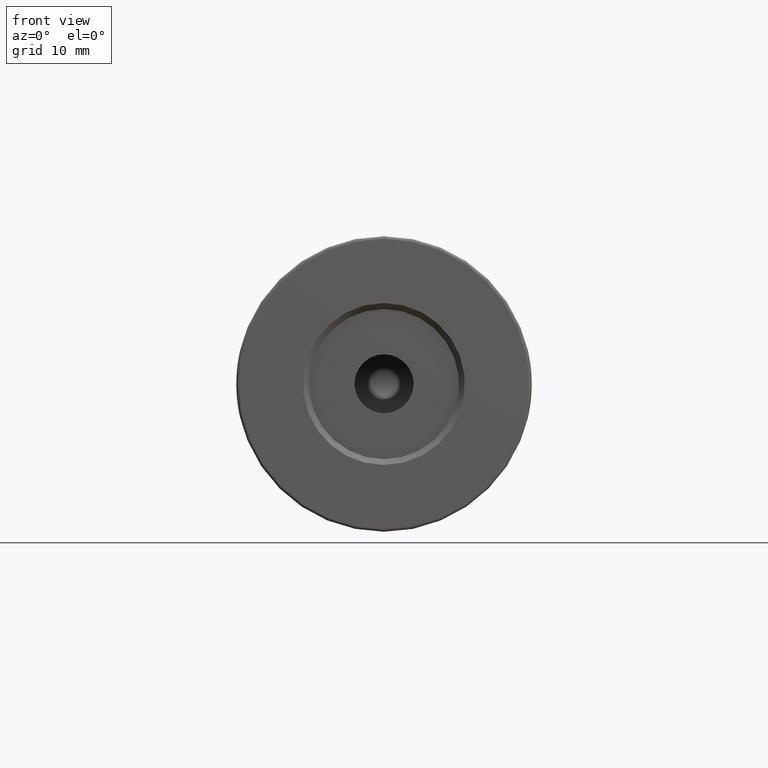
[diagram: clean part render]
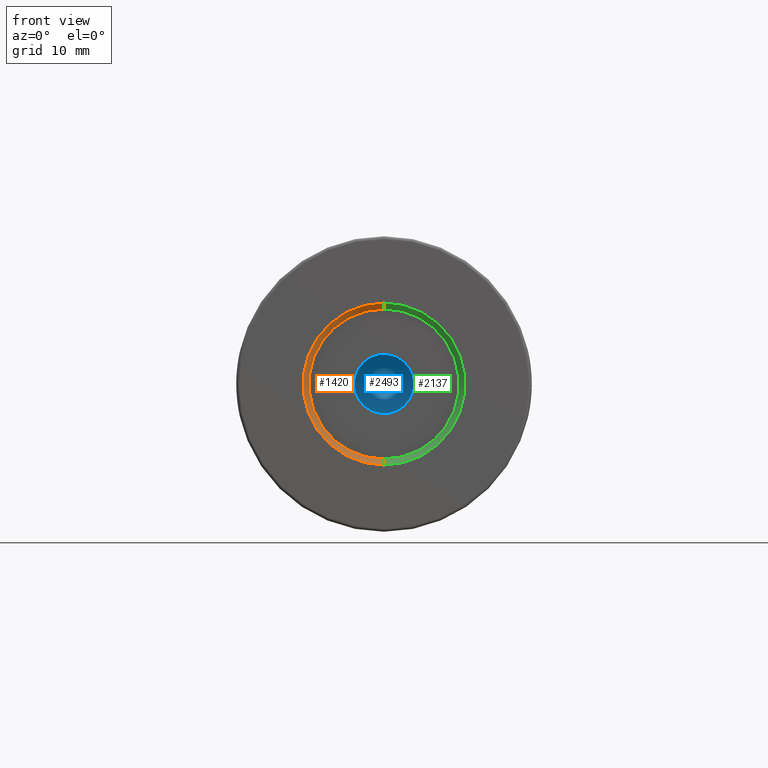
[diagram: same view with three faces highlighted in distinct colors, each labeled with its STEP entity id]
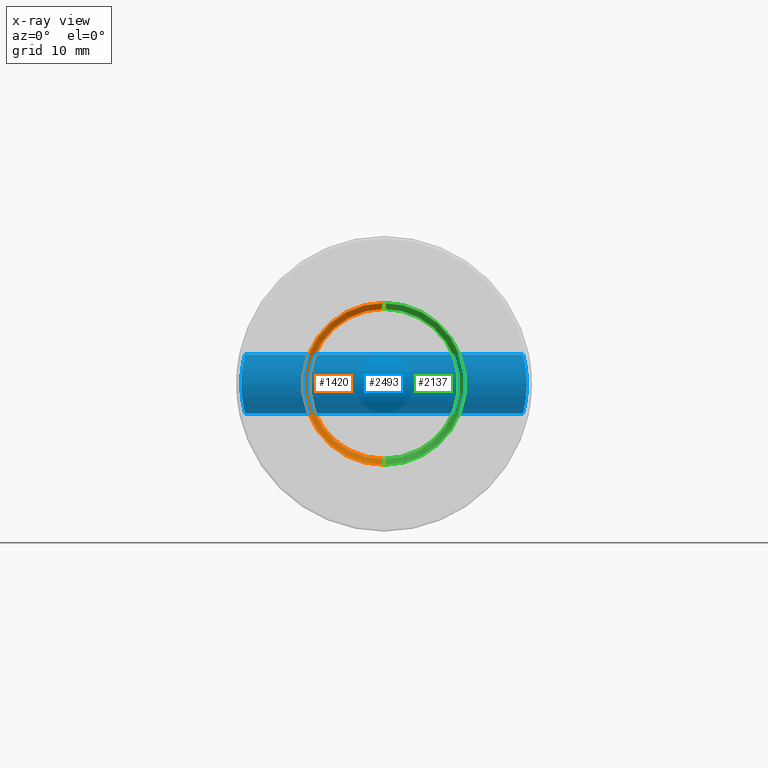
[diagram: x-ray of the same camera — body ghosted, the three highlighted faces saturated]
A machine part, front view with three faces highlighted in distinct colors.
The next image is the same camera in x-ray (body ghosted, the three faces saturated) — at least one of them is partly hidden behind the body in this view.
Their STEP definitions:

[orange] entity #1420 — the highlighted conical surface has half-angle 45 deg.
#44 = DIRECTION ( 'NONE',  ( 8.659560562354948882E-17, -0.7071067811865463515, 0.7071067811865487940 ) ) ;
#97 = CARTESIAN_POINT ( 'NONE',  ( -22.50520183104453409, -24.00174781523060830, 43.14999999999999858 ) ) ;
#187 = EDGE_CURVE ( 'NONE', #2911, #1615, #2045, .T. ) ;
#337 = CARTESIAN_POINT ( 'NONE',  ( -22.50520183104453409, -24.00174781523060830, 56.85000000000000142 ) ) ;
#548 = VECTOR ( 'NONE', #2729, 1000.000000000000000 ) ;
#577 = LINE ( 'NONE', #1105, #1150 ) ;
#603 = LINE ( 'NONE', #3250, #548 ) ;
#652 = DIRECTION ( 'NONE',  ( 0.0000000000000000000, 0.0000000000000000000, 1.000000000000000000 ) ) ;
#677 = ORIENTED_EDGE ( 'NONE', *, *, #187, .T. ) ;
#862 = CARTESIAN_POINT ( 'NONE',  ( -22.50520183104453409, -24.00174781523060830, 50.00000000000000000 ) ) ;
#880 = CONICAL_SURFACE ( 'NONE', #3063, 6.850000000000002309, 0.7853981633974500554 ) ;
#881 = DIRECTION ( 'NONE',  ( -0.0000000000000000000, -1.000000000000000000, -0.0000000000000000000 ) ) ;
#1035 = VERTEX_POINT ( 'NONE', #97 ) ;
#1076 = EDGE_CURVE ( 'NONE', #1615, #1596, #577, .T. ) ;
#1105 = CARTESIAN_POINT ( 'NONE',  ( -22.50520183104453409, -24.00174781523060830, 56.85000000000000142 ) ) ;
#1137 = FACE_OUTER_BOUND ( 'NONE', #1421, .T. ) ;
#1150 = VECTOR ( 'NONE', #44, 1000.000000000000000 ) ;
#1420 = ADVANCED_FACE ( 'NONE', ( #1137 ), #880, .F. ) ;
#1421 = EDGE_LOOP ( 'NONE', ( #677, #2361, #1994, #3101 ) ) ;
#1502 = CARTESIAN_POINT ( 'NONE',  ( -22.50520183104453409, -23.50174781523060830, 56.35000000000000142 ) ) ;
#1548 = CIRCLE ( 'NONE', #1714, 6.850000000000002309 ) ;
#1596 = VERTEX_POINT ( 'NONE', #337 ) ;
#1615 = VERTEX_POINT ( 'NONE', #1502 ) ;
#1714 = AXIS2_PLACEMENT_3D ( 'NONE', #2186, #2757, #3277 ) ;
#1771 = AXIS2_PLACEMENT_3D ( 'NONE', #2726, #2460, #652 ) ;
#1891 = EDGE_CURVE ( 'NONE', #2911, #1035, #603, .T. ) ;
#1945 = DIRECTION ( 'NONE',  ( 0.0000000000000000000, 0.0000000000000000000, -1.000000000000000000 ) ) ;
#1994 = ORIENTED_EDGE ( 'NONE', *, *, #2636, .F. ) ;
#2045 = CIRCLE ( 'NONE', #1771, 6.350000000000001421 ) ;
#2186 = CARTESIAN_POINT ( 'NONE',  ( -22.50520183104453409, -24.00174781523060830, 50.00000000000000000 ) ) ;
#2361 = ORIENTED_EDGE ( 'NONE', *, *, #1076, .T. ) ;
#2460 = DIRECTION ( 'NONE',  ( -0.0000000000000000000, 1.000000000000000000, -0.0000000000000000000 ) ) ;
#2636 = EDGE_CURVE ( 'NONE', #1035, #1596, #1548, .T. ) ;
#2726 = CARTESIAN_POINT ( 'NONE',  ( -22.50520183104453409, -23.50174781523060830, 50.00000000000000000 ) ) ;
#2729 = DIRECTION ( 'NONE',  ( 0.0000000000000000000, -0.7071067811865463515, -0.7071067811865487940 ) ) ;
#2737 = CARTESIAN_POINT ( 'NONE',  ( -22.50520183104453409, -23.50174781523060830, 43.64999999999999858 ) ) ;
#2757 = DIRECTION ( 'NONE',  ( 0.0000000000000000000, 1.000000000000000000, 0.0000000000000000000 ) ) ;
#2911 = VERTEX_POINT ( 'NONE', #2737 ) ;
#3063 = AXIS2_PLACEMENT_3D ( 'NONE', #862, #881, #1945 ) ;
#3101 = ORIENTED_EDGE ( 'NONE', *, *, #1891, .F. ) ;
#3250 = CARTESIAN_POINT ( 'NONE',  ( -22.50520183104453409, -24.00174781523060830, 43.14999999999999858 ) ) ;
#3277 = DIRECTION ( 'NONE',  ( 0.0000000000000000000, 0.0000000000000000000, 1.000000000000000000 ) ) ;

[blue] entity #2493 — the highlighted cylindrical surface (edge-blend (fillet) strip) has radius 2.5 mm, axis along (1, -0, -0).
#12 = CARTESIAN_POINT ( 'NONE',  ( -10.43156405839783218, -1.080594982313279884, 49.67285477186023712 ) ) ;
#15 = CARTESIAN_POINT ( 'NONE',  ( -34.54368112407457403, -0.9414460339279406842, 50.88104559077472544 ) ) ;
#17 = CARTESIAN_POINT ( 'NONE',  ( -34.40604090009802007, -0.2955402757887194976, 51.83903909737345828 ) ) ;
#29 = CARTESIAN_POINT ( 'NONE',  ( -10.65192854981628479, -0.007112948275392640129, 47.93238411280920275 ) ) ;
#32 = CARTESIAN_POINT ( 'NONE',  ( -34.51594362384925319, -0.8258666276665734829, 51.14180818670681106 ) ) ;
#35 = CARTESIAN_POINT ( 'NONE',  ( -34.42314861018448369, -0.3880299837949259811, 51.74909947995848114 ) ) ;
#38 = CARTESIAN_POINT ( 'NONE',  ( -34.45766587034616890, -0.5621190265008743081, 48.44791823222281124 ) ) ;
#47 = CARTESIAN_POINT ( 'NONE',  ( -10.65285238118425148, -0.0009475333826083760487, 47.92819957675042275 ) ) ;
#50 = B_SPLINE_CURVE_WITH_KNOTS ( 'NONE', 3,
 ( #1081, #3217, #825, #2297, #2330, #1888, #2597, #2615, #471, #3366, #3416, #1019, #2127, #729, #3103, #2069, #713, #3401, #2582, #190, #1247, #1004, #1795, #2053, #1533, #204, #3139, #744, #878, #1630, #372, #1958, #108, #2695, #1401, #2502, #1663, #1940, #1920, #300, #3014, #1645, #2710, #1698, #623, #1682, #2480, #2163, #1381, #3305, #898, #2748, #38, #915, #1973, #352, #858, #1363, #2444, #1099, #3234, #1439, #2463, #2768, #2426, #3289, #2196, #72, #2219, #315, #1169, #3267, #54, #1418, #1133, #2237, #90, #1114, #571, #639, #840 ),
 .UNSPECIFIED., .F., .F.,
 ( 4, 2, 2, 2, 2, 2, 1, 2, 2, 1, 2, 2, 2, 1, 2, 2, 2, 1, 1, 1, 2, 2, 2, 2, 2, 2, 2, 1, 2, 2, 2, 1, 2, 2, 2, 2, 2, 1, 2, 2, 2, 2, 2, 2, 4 ),
 ( 0.7500228881835949712, 0.7656464576721061510, 0.7734582424163616299, 0.7812700271606171087, 0.7890818119048725876, 0.7968935966491281775, 0.8047053813933836564, 0.8086112737655115623, 0.8125171661376395793, 0.8203289508818951692, 0.8242348432540229641, 0.8281407356261507591, 0.8359525203704070151, 0.8398584127425350321, 0.8418113589285993736, 0.8437643051146637152, 0.8515760898589228578, 0.8554819822310526511, 0.8574349284171172147, 0.8584114015101494966, 0.8588996380566661371, 0.8593878746031826665, 0.8671996593474440296, 0.8711055517195748221, 0.8750114440917056147, 0.8828232288359665336, 0.8867291212080968821, 0.8886820673941616677, 0.8896585404871945046, 0.8906350135802274526, 0.8984467983244939226, 0.9023526906966272687, 0.9043056368826939417, 0.9062585830687606148, 0.9140703678130295273, 0.9179762601851639836, 0.9218821525572985509, 0.9296939373015686847, 0.9335998296737042512, 0.9375057220458399287, 0.9453175067901099515, 0.9531292915343799743, 0.9609410762786499971, 0.9687528610229200199, 1.000000000000000000 ),
 .UNSPECIFIED. ) ;
#51 = CARTESIAN_POINT ( 'NONE',  ( -34.45235365778852099, -0.5361417108525038389, 51.58370875816879675 ) ) ;
#52 = CARTESIAN_POINT ( 'NONE',  ( -34.39865427623972494, -0.2538691972500468075, 51.87630079082518364 ) ) ;
#54 = CARTESIAN_POINT ( 'NONE',  ( -34.55052360424400604, -0.9691579968573799109, 49.19560660665842278 ) ) ;
#65 = CARTESIAN_POINT ( 'NONE',  ( -10.70635219089604462, 0.4197558955992587992, 47.69935029146150640 ) ) ;
#68 = CARTESIAN_POINT ( 'NONE',  ( -34.56987545375777415, -1.045809881140426834, 50.52745018297854784 ) ) ;
#72 = CARTESIAN_POINT ( 'NONE',  ( -34.52845201512811002, -0.8786810074049486996, 48.96753673022787723 ) ) ;
#79 = CARTESIAN_POINT ( 'NONE',  ( -10.74042506148157727, 0.8292857282991712431, 47.56526349988944702 ) ) ;
#86 = CARTESIAN_POINT ( 'NONE',  ( -34.45689946489315503, -0.5582448629678482543, 51.55638464945502619 ) ) ;
#90 = CARTESIAN_POINT ( 'NONE',  ( -34.56747093977831042, -1.036417866434832691, 49.43074854721366762 ) ) ;
#108 = CARTESIAN_POINT ( 'NONE',  ( -34.38215854310586650, -0.1572337749297392784, 48.04278849787316830 ) ) ;
#132 = CARTESIAN_POINT ( 'NONE',  ( -10.61375476845890553, -0.2424175758447397189, 48.11367224379719687 ) ) ;
#141 = EDGE_LOOP ( 'NONE', ( #3220, #901, #318, #1872, #2033 ) ) ;
#152 = CARTESIAN_POINT ( 'NONE',  ( -10.52509590031157138, -0.6911116932292776793, 48.62716597002481933 ) ) ;
#179 = VERTEX_POINT ( 'NONE', #855 ) ;
#190 = CARTESIAN_POINT ( 'NONE',  ( -34.32262663297802163, 0.2561880022930116407, 47.77601120054147543 ) ) ;
#204 = CARTESIAN_POINT ( 'NONE',  ( -34.35093376906428375, 0.04409749599018487898, 47.89848142053469360 ) ) ;
#228 = CARTESIAN_POINT ( 'NONE',  ( -10.64957744783410654, -0.02300115478601310118, 52.05702266511603682 ) ) ;
#243 = CARTESIAN_POINT ( 'NONE',  ( -10.48170455071354468, -0.8797127351541094153, 51.03018400399640342 ) ) ;
#247 = CARTESIAN_POINT ( 'NONE',  ( -34.36433900642754224, -0.04581549950857243675, 52.04091040487949726 ) ) ;
#257 = CARTESIAN_POINT ( 'NONE',  ( -10.59768553201901753, -0.3321902539828245904, 51.80448705950132648 ) ) ;
#276 = CARTESIAN_POINT ( 'NONE',  ( -10.43025254436777871, -1.085644778690181500, 49.71374546766558922 ) ) ;
#281 = CARTESIAN_POINT ( 'NONE',  ( -34.25265052839080937, 1.398252184769062545, 52.50000002275201183 ) ) ;
#293 = CARTESIAN_POINT ( 'NONE',  ( -10.63697505384424069, -0.1036455912846400151, 51.99867907403340439 ) ) ;
#298 = CARTESIAN_POINT ( 'NONE',  ( -34.36811292906084958, -0.07006115758311164121, 52.02348116211190643 ) ) ;
#300 = CARTESIAN_POINT ( 'NONE',  ( -34.40289296267378205, -0.2778242763902563084, 48.14495784682275570 ) ) ;
#309 = CARTESIAN_POINT ( 'NONE',  ( -10.57485337616742527, -0.4524102370145421381, 48.31908865571321599 ) ) ;
#312 = CARTESIAN_POINT ( 'NONE',  ( -34.49555993424461064, -0.7371358814722900332, 51.30020623644634270 ) ) ;
#313 = CARTESIAN_POINT ( 'NONE',  ( -34.25265217549466001, 1.236269165534699788, 52.50000000000000711 ) ) ;
#315 = CARTESIAN_POINT ( 'NONE',  ( -34.53415704703181888, -0.9023810259702501613, 49.02146608219466373 ) ) ;
#318 = ORIENTED_EDGE ( 'NONE', *, *, #887, .T. ) ;
#325 = CARTESIAN_POINT ( 'NONE',  ( -10.72619458734257059, 0.6309908818967997490, 47.62028682001273694 ) ) ;
#328 = CARTESIAN_POINT ( 'NONE',  ( -34.57597065877024534, -1.069532232657253168, 50.40818179685047795 ) ) ;
#348 = CARTESIAN_POINT ( 'NONE',  ( -34.47358128225562268, -0.6374202605790572074, 51.45179814202566604 ) ) ;
#352 = CARTESIAN_POINT ( 'NONE',  ( -34.47459360788752747, -0.6420274703579645914, 48.55504079404434492 ) ) ;
#359 = CARTESIAN_POINT ( 'NONE',  ( -35.00520183104453764, 1.398252184769388728, 52.50000000000000711 ) ) ;
#372 = CARTESIAN_POINT ( 'NONE',  ( -34.37321774599598712, -0.1023266512687587421, 48.00033112869615337 ) ) ;
#400 = CARTESIAN_POINT ( 'NONE',  ( -10.61189752606723680, -0.2530256318910765745, 48.12295669592722902 ) ) ;
#417 = CARTESIAN_POINT ( 'NONE',  ( -10.56681441809331368, -0.4930984355256202156, 48.36462535847881838 ) ) ;
#429 = CARTESIAN_POINT ( 'NONE',  ( -10.73519474087080994, 0.7493470907623660526, 52.41466407441143360 ) ) ;
#447 = CARTESIAN_POINT ( 'NONE',  ( -10.75344100359857968, 1.112614096120845275, 52.48396916619155661 ) ) ;
#471 = CARTESIAN_POINT ( 'NONE',  ( -34.26996838981452242, 0.8294527487229288454, 47.56522263060032429 ) ) ;
#496 = CARTESIAN_POINT ( 'NONE',  ( -10.45675696194166449, -0.9816754134451335378, 49.23350322589699601 ) ) ;
#512 = CARTESIAN_POINT ( 'NONE',  ( -10.62800475089785124, -0.1586852750508220555, 51.95605736551378584 ) ) ;
#529 = CARTESIAN_POINT ( 'NONE',  ( -10.62583528341401085, -0.1716875949901993936, 51.94559000068268517 ) ) ;
#530 = DIRECTION ( 'NONE',  ( 0.0000000000000000000, 0.0000000000000000000, -1.000000000000000000 ) ) ;
#533 = CARTESIAN_POINT ( 'NONE',  ( -34.39678456562497644, -0.2431949740330171528, 51.88565121880358078 ) ) ;
#544 = CARTESIAN_POINT ( 'NONE',  ( -10.62344330914441137, -0.1859351135215282225, 51.93400119752855915 ) ) ;
#547 = CARTESIAN_POINT ( 'NONE',  ( -34.54002586174097189, -0.9265255133409245891, 50.91969437421788314 ) ) ;
#550 = CARTESIAN_POINT ( 'NONE',  ( -34.32973418822695066, 0.1994190620568813965, 52.19391175067407573 ) ) ;
#564 = CARTESIAN_POINT ( 'NONE',  ( -10.46675418762623266, -0.9413161041780231386, 49.11861145009987695 ) ) ;
#567 = CARTESIAN_POINT ( 'NONE',  ( -34.58436371778456220, -1.101747815230615046, 50.00000000000000000 ) ) ;
#569 = CARTESIAN_POINT ( 'NONE',  ( -34.40082131573296209, -0.2661626669013910651, 51.86541833320497830 ) ) ;
#571 = CARTESIAN_POINT ( 'NONE',  ( -34.58016539617008789, -1.085858857418753987, 49.67297012222034880 ) ) ;
#580 = CARTESIAN_POINT ( 'NONE',  ( -10.68052348044559352, 0.1982792118607915044, 47.80671014584407175 ) ) ;
#584 = CARTESIAN_POINT ( 'NONE',  ( -34.34574828843261685, 0.08003128967803627147, 52.12460697448131697 ) ) ;
#596 = CARTESIAN_POINT ( 'NONE',  ( -10.68765339094563060, 0.2547109133766167766, 47.77645880612942619 ) ) ;
#611 = CARTESIAN_POINT ( 'NONE',  ( -35.00520183104453764, 1.398252184769388506, 47.50000000000000000 ) ) ;
#618 = CARTESIAN_POINT ( 'NONE',  ( -34.58332565315851070, -1.097829955506912869, 50.16206928806301590 ) ) ;
#623 = CARTESIAN_POINT ( 'NONE',  ( -34.43271107047542046, -0.4380337508703699423, 48.30302201580879995 ) ) ;
#639 = CARTESIAN_POINT ( 'NONE',  ( -34.58436371778455509, -1.101747815230613492, 49.83753810370575366 ) ) ;
#644 = CARTESIAN_POINT ( 'NONE',  ( -10.74267190343695333, 0.8671768546494194041, 47.55670384601891953 ) ) ;
#663 = CARTESIAN_POINT ( 'NONE',  ( -10.73524935634622679, 0.7501397676349280674, 47.58512630799975085 ) ) ;
#680 = CARTESIAN_POINT ( 'NONE',  ( -10.57773180386035428, -0.4376908258266889451, 48.30298648008233187 ) ) ;
#689 = CARTESIAN_POINT ( 'NONE',  ( -10.75209340271116432, 1.071636353525297070, 52.47891861097524924 ) ) ;
#696 = CARTESIAN_POINT ( 'NONE',  ( -10.54864018140504633, -0.5816680154576809869, 48.47333049443065534 ) ) ;
#713 = CARTESIAN_POINT ( 'NONE',  ( -34.30563352353281914, 0.4043161051188541300, 47.70574000951063454 ) ) ;
#721 = CARTESIAN_POINT ( 'NONE',  ( -10.69849887821426648, 0.3465721218114259372, 52.26868595215827895 ) ) ;
#729 = CARTESIAN_POINT ( 'NONE',  ( -34.29428882787969712, 0.5177238712617837635, 47.66010762342145313 ) ) ;
#744 = CARTESIAN_POINT ( 'NONE',  ( -34.35511391788480751, 0.01548280110741784808, 47.91720626424380924 ) ) ;
#751 = CARTESIAN_POINT ( 'NONE',  ( -10.44802382936704888, -1.016394345111540254, 49.35103264552653712 ) ) ;
#770 = CARTESIAN_POINT ( 'NONE',  ( -34.25692942769179439, 1.072705232016819776, 52.48426854193683511 ) ) ;
#783 = CARTESIAN_POINT ( 'NONE',  ( -10.47039545447926834, -0.9264528069906580177, 49.08012378233305384 ) ) ;
#787 = CARTESIAN_POINT ( 'NONE',  ( -34.39003097981993307, -0.2040613252291879065, 51.91903397196297476 ) ) ;
#798 = EDGE_CURVE ( 'NONE', #1632, #3068, #3052, .T. ) ;
#799 = CARTESIAN_POINT ( 'NONE',  ( -10.54703919517952393, -0.5893708078921872096, 51.51690487190018075 ) ) ;
#805 = CARTESIAN_POINT ( 'NONE',  ( -34.33622545325808773, 0.1498362925680415403, 52.16606716925647191 ) ) ;
#817 = CARTESIAN_POINT ( 'NONE',  ( -10.44688409141323149, -1.021078929299972016, 50.65151652726084563 ) ) ;
#821 = CARTESIAN_POINT ( 'NONE',  ( -34.56758620653832281, -1.036867936840156101, 50.56735310508386760 ) ) ;
#823 = CARTESIAN_POINT ( 'NONE',  ( -34.33170421932133820, 0.1841765980727979590, 52.18549987220747965 ) ) ;
#825 = CARTESIAN_POINT ( 'NONE',  ( -34.25372608118318141, 1.235573217283398861, 47.50394556699181692 ) ) ;
#834 = CARTESIAN_POINT ( 'NONE',  ( -10.54466226497588721, -0.6005430654723781236, 48.49825746431469753 ) ) ;
#838 = CARTESIAN_POINT ( 'NONE',  ( -34.30585923076505850, 0.4026942708919494796, 52.29330818213703225 ) ) ;
#840 = CARTESIAN_POINT ( 'NONE',  ( -34.58436371778456220, -1.101747815230615046, 50.00000000000000000 ) ) ;
#851 = CARTESIAN_POINT ( 'NONE',  ( -10.61231992382560385, -0.2506214636464055845, 48.12083918762263579 ) ) ;
#855 = CARTESIAN_POINT ( 'NONE',  ( -34.25265052839080937, 1.398252184769062545, 52.50000002275201183 ) ) ;
#858 = CARTESIAN_POINT ( 'NONE',  ( -34.47813198006177515, -0.6583300113946713994, 48.57853663993380167 ) ) ;
#869 = CARTESIAN_POINT ( 'NONE',  ( -10.55563654013713482, -0.5478977700875864443, 48.43075464459197121 ) ) ;
#871 = CARTESIAN_POINT ( 'NONE',  ( -34.55371675179834057, -0.9819582165585893918, 50.76562840243285990 ) ) ;
#878 = CARTESIAN_POINT ( 'NONE',  ( -34.36065912379799414, -0.02189760895549874159, 47.94221740969717160 ) ) ;
#887 = EDGE_CURVE ( 'NONE', #179, #1632, #1964, .T. ) ;
#898 = CARTESIAN_POINT ( 'NONE',  ( -34.45088966697465338, -0.5289798280020012733, 48.40758319727122938 ) ) ;
#901 = ORIENTED_EDGE ( 'NONE', *, *, #2039, .T. ) ;
#912 = EDGE_CURVE ( 'NONE', #2981, #3068, #1910, .T. ) ;
#915 = CARTESIAN_POINT ( 'NONE',  ( -34.46314919980924429, -0.5883474059361837316, 48.48175091579223306 ) ) ;
#937 = CARTESIAN_POINT ( 'NONE',  ( -10.51868758877161270, -0.7200257151353848251, 48.67196310145203597 ) ) ;
#954 = CARTESIAN_POINT ( 'NONE',  ( -10.70057055069110064, 0.3661159422534788765, 47.72291907336323646 ) ) ;
#964 = CARTESIAN_POINT ( 'NONE',  ( -10.72136315415296970, 0.5738019488466454820, 52.36077209941818467 ) ) ;
#980 = CARTESIAN_POINT ( 'NONE',  ( -10.73219813123106725, 0.7077767491621820284, 52.40308858972146311 ) ) ;
#1004 = CARTESIAN_POINT ( 'NONE',  ( -34.33157020775158230, 0.1848587072603982695, 47.81387465573678952 ) ) ;
#1010 = CARTESIAN_POINT ( 'NONE',  ( -10.53935697225389312, -0.6254966279011179298, 51.46794146036297946 ) ) ;
#1019 = CARTESIAN_POINT ( 'NONE',  ( -34.28408417304784450, 0.6325990095545964698, 47.61980232287655923 ) ) ;
#1027 = CARTESIAN_POINT ( 'NONE',  ( -10.48775368434227140, -0.8544294256867224213, 51.08551524650387421 ) ) ;
#1043 = CARTESIAN_POINT ( 'NONE',  ( -10.43661014202156601, -1.061059718658859952, 49.54899595839199833 ) ) ;
#1045 = DIRECTION ( 'NONE',  ( 1.000000000000000000, -0.0000000000000000000, -0.0000000000000000000 ) ) ;
#1059 = CARTESIAN_POINT ( 'NONE',  ( -10.58346237394712830, -0.4082778326659912138, 51.72892613119137195 ) ) ;
#1073 = CARTESIAN_POINT ( 'NONE',  ( -10.50780244122529261, -0.7681796818519227577, 51.24778492122360518 ) ) ;
#1079 = CARTESIAN_POINT ( 'NONE',  ( -34.38153388469637406, -0.1538147825593514650, 51.96040254886053589 ) ) ;
#1081 = CARTESIAN_POINT ( 'NONE',  ( -34.25265054498071038, 1.398252184769378959, 47.49999999999539568 ) ) ;
#1092 = CARTESIAN_POINT ( 'NONE',  ( -10.71235439384131460, 0.4781380950029291421, 47.67509863884829002 ) ) ;
#1095 = CARTESIAN_POINT ( 'NONE',  ( -34.50268437594403537, -0.7686213966978545642, 51.24753063485617588 ) ) ;
#1097 = CARTESIAN_POINT ( 'NONE',  ( -34.43550956290241771, -0.4522026045018584517, 51.68113994056925264 ) ) ;
#1099 = CARTESIAN_POINT ( 'NONE',  ( -34.48795404594740432, -0.7031998793194652597, 48.64510045653472758 ) ) ;
#1108 = CARTESIAN_POINT ( 'NONE',  ( -10.65951608119880767, 0.04397262649379376359, 47.89814453425164231 ) ) ;
#1111 = CARTESIAN_POINT ( 'NONE',  ( -34.48401816584316038, -0.6852538559192985490, 51.38169719037615124 ) ) ;
#1114 = CARTESIAN_POINT ( 'NONE',  ( -34.56966959213393409, -1.045008463542665744, 49.46876354832346578 ) ) ;
#1127 = CARTESIAN_POINT ( 'NONE',  ( -10.56225021271682962, -0.5156065727793202047, 48.39127750157916097 ) ) ;
#1133 = CARTESIAN_POINT ( 'NONE',  ( -34.55963833727091838, -1.005550600668984051, 49.31192079842450937 ) ) ;
#1147 = CARTESIAN_POINT ( 'NONE',  ( -34.45330299445130606, -0.5407750536102822192, 51.57803819709879178 ) ) ;
#1169 = CARTESIAN_POINT ( 'NONE',  ( -34.54002772576888702, -0.9265728093887797279, 49.07969790766723150 ) ) ;
#1194 = CARTESIAN_POINT ( 'NONE',  ( -10.62054598104047010, -0.2030448089213965357, 48.08011745744298082 ) ) ;
#1240 = FACE_OUTER_BOUND ( 'NONE', #141, .T. ) ;
#1247 = CARTESIAN_POINT ( 'NONE',  ( -34.32517718085318137, 0.2355261595269950714, 47.78675913460672575 ) ) ;
#1257 = CARTESIAN_POINT ( 'NONE',  ( -10.65514354455483392, 0.01449203186835839631, 52.08213575337757817 ) ) ;
#1274 = CARTESIAN_POINT ( 'NONE',  ( -10.68486198365343220, 0.2326005164725307994, 52.21170044161939927 ) ) ;
#1291 = CARTESIAN_POINT ( 'NONE',  ( -10.56685546660000163, -0.4927281287832489531, 51.63538786506001799 ) ) ;
#1306 = CARTESIAN_POINT ( 'NONE',  ( -10.43018898295431995, -1.086043810299412549, 50.32543852519826544 ) ) ;
#1322 = CARTESIAN_POINT ( 'NONE',  ( -10.57732511994436209, -0.4399142557606294801, 51.69492976375161675 ) ) ;
#1338 = CARTESIAN_POINT ( 'NONE',  ( -10.52885508855509755, -0.6739989469221575602, 51.39853227016897819 ) ) ;
#1341 = CARTESIAN_POINT ( 'NONE',  ( -34.52032622242513327, -0.8445100356069770164, 51.10473890576677292 ) ) ;
#1356 = CARTESIAN_POINT ( 'NONE',  ( -10.63454691679352848, -0.1190031699463948850, 48.01264145042093645 ) ) ;
#1359 = CARTESIAN_POINT ( 'NONE',  ( -34.56249268766884342, -1.016837435992602678, 50.64733428474297483 ) ) ;
#1361 = CARTESIAN_POINT ( 'NONE',  ( -34.44354952716784624, -0.4929003277358447455, 51.63560382797952997 ) ) ;
#1363 = CARTESIAN_POINT ( 'NONE',  ( -34.48044836707251903, -0.6689643209193825157, 48.59404682432251121 ) ) ;
#1373 = CARTESIAN_POINT ( 'NONE',  ( -10.47787395024711543, -0.8956762104589461870, 49.00529512604870774 ) ) ;
#1377 = CARTESIAN_POINT ( 'NONE',  ( -34.45474805832021303, -0.5478052659530334711, 51.56936024582271472 ) ) ;
#1379 = CARTESIAN_POINT ( 'NONE',  ( -34.35844637509190846, -0.006921562652920045314, 52.06774620976816692 ) ) ;
#1381 = CARTESIAN_POINT ( 'NONE',  ( -34.44837371983107488, -0.5166280658709982987, 48.39272163327927245 ) ) ;
#1393 = CARTESIAN_POINT ( 'NONE',  ( -10.51501407881777794, -0.7363793038043027206, 48.69855127287242169 ) ) ;
#1401 = CARTESIAN_POINT ( 'NONE',  ( -34.38577565378596290, -0.1788920693605692003, 48.06025158872775194 ) ) ;
#1414 = CARTESIAN_POINT ( 'NONE',  ( -34.46180608895014785, -0.5818729988153658050, 51.52640824506144668 ) ) ;
#1418 = CARTESIAN_POINT ( 'NONE',  ( -34.55357667331868043, -0.9813988309349318540, 49.23254846252063288 ) ) ;
#1439 = CARTESIAN_POINT ( 'NONE',  ( -34.50003614693451937, -0.7569234432429607917, 48.73286471885351290 ) ) ;
#1463 = CARTESIAN_POINT ( 'NONE',  ( -10.49703592662601004, -0.8148377673075698491, 48.83698465690920898 ) ) ;
#1481 = CARTESIAN_POINT ( 'NONE',  ( -10.60442211717972683, -0.2952135896773785406, 48.16065378347290959 ) ) ;
#1492 = CARTESIAN_POINT ( 'NONE',  ( -10.72622720231138871, 0.6314631381777605634, 52.37983731697224243 ) ) ;
#1508 = CARTESIAN_POINT ( 'NONE',  ( -10.75667521398369608, 1.235421006741817429, 52.49604762626250931 ) ) ;
#1524 = CARTESIAN_POINT ( 'NONE',  ( -10.65924026932488289, 0.04251003613308864532, 52.10049443554759563 ) ) ;
#1533 = CARTESIAN_POINT ( 'NONE',  ( -34.34705827746651607, 0.07100138809603820378, 47.88122892104171768 ) ) ;
#1540 = CARTESIAN_POINT ( 'NONE',  ( -10.74274117493633618, 0.8684932594161320907, 52.44355759701265640 ) ) ;
#1557 = CARTESIAN_POINT ( 'NONE',  ( -10.55933643631681562, -0.5298495552801348873, 51.59136355188988432 ) ) ;
#1572 = CARTESIAN_POINT ( 'NONE',  ( -10.52225190995814152, -0.7040929116324615711, 51.35352181794343096 ) ) ;
#1589 = CARTESIAN_POINT ( 'NONE',  ( -10.60718500976720691, -0.2796514536786489091, 51.85339265559527888 ) ) ;
#1590 = CARTESIAN_POINT ( 'NONE',  ( -35.00520183104453764, 1.398252184769388506, 50.00000000000000000 ) ) ;
#1605 = CARTESIAN_POINT ( 'NONE',  ( -10.64475702032041937, -0.05449199714333695377, 52.03499243848688849 ) ) ;
#1611 = CARTESIAN_POINT ( 'NONE',  ( -34.28602672658946915, 0.5950355727951023299, 52.37347955788561649 ) ) ;
#1623 = CARTESIAN_POINT ( 'NONE',  ( -10.47238800386702806, -0.9182809379813579032, 49.05975502746731109 ) ) ;
#1626 = CARTESIAN_POINT ( 'NONE',  ( -34.58436371778457641, -1.101747815230613936, 50.08077539355467422 ) ) ;
#1628 = CARTESIAN_POINT ( 'NONE',  ( -34.44811386680468956, -0.5154113351269652421, 51.60895465327023857 ) ) ;
#1630 = CARTESIAN_POINT ( 'NONE',  ( -34.36546234112146436, -0.05330031755438798674, 47.96415985767388435 ) ) ;
#1632 = VERTEX_POINT ( 'NONE', #3090 ) ;
#1639 = CARTESIAN_POINT ( 'NONE',  ( -10.61791199059537938, -0.2184314473192411066, 48.09305609076849208 ) ) ;
#1643 = CARTESIAN_POINT ( 'NONE',  ( -34.30408236987687332, 0.4194607100796639565, 52.30052462114022660 ) ) ;
#1645 = CARTESIAN_POINT ( 'NONE',  ( -34.41225743641047075, -0.3296779906252704229, 48.19311185126773722 ) ) ;
#1656 = CARTESIAN_POINT ( 'NONE',  ( -10.71610056787914900, 0.5169422706544986035, 47.66013366162555798 ) ) ;
#1663 = CARTESIAN_POINT ( 'NONE',  ( -34.38704001703374047, -0.1864058910529627633, 48.06638648100377509 ) ) ;
#1676 = CARTESIAN_POINT ( 'NONE',  ( -34.49189742569019046, -0.7208368889242648958, 51.32674070399374244 ) ) ;
#1682 = CARTESIAN_POINT ( 'NONE',  ( -34.44080632500155303, -0.4790193695790840867, 48.34885748940359917 ) ) ;
#1698 = CARTESIAN_POINT ( 'NONE',  ( -34.42649553506731053, -0.4059594385868249278, 48.26863308280292841 ) ) ;
#1704 = CARTESIAN_POINT ( 'NONE',  ( -10.75775311712864024, 1.398252184769388506, 47.50000000000000000 ) ) ;
#1718 = VECTOR ( 'NONE', #1948, 1000.000000000000000 ) ;
#1724 = CARTESIAN_POINT ( 'NONE',  ( -10.67175156277421877, 0.1317791047549085603, 47.84443531905044011 ) ) ;
#1740 = CARTESIAN_POINT ( 'NONE',  ( -10.67407581826325469, 0.1490699394471502459, 47.83437514433480686 ) ) ;
#1750 = CARTESIAN_POINT ( 'NONE',  ( -10.74040006283853366, 0.8288618078406300160, 52.43464063301803435 ) ) ;
#1757 = CARTESIAN_POINT ( 'NONE',  ( -10.55350416965509908, -0.5582445815112753174, 48.44361620070483809 ) ) ;
#1764 = B_SPLINE_CURVE_WITH_KNOTS ( 'NONE', 3,
 ( #567, #1626, #618, #2724, #328, #68, #821, #1359, #2938, #871, #2192, #15, #547, #2674, #3011, #3231, #1341, #32, #1884, #2957, #1095, #312, #1676, #2975, #2743, #1111, #2441, #348, #2707, #1414, #86, #1377, #1147, #51, #1628, #1361, #1097, #2406, #3167, #1902, #35, #2976, #1886, #17, #569, #2442, #52, #2693, #533, #2094, #3184, #787, #3232, #1079, #2143, #298, #247, #2924, #1379, #2424, #3215, #584, #2641, #805, #823, #550, #3444, #2161, #2940, #838, #1643, #1611, #2708, #770, #313, #281 ),
 .UNSPECIFIED., .F., .F.,
 ( 4, 2, 2, 2, 2, 1, 2, 2, 1, 2, 2, 2, 1, 2, 2, 2, 1, 1, 2, 2, 2, 2, 2, 2, 2, 2, 2, 1, 2, 2, 2, 1, 2, 2, 2, 2, 2, 1, 2, 2, 2, 4 ),
 ( 0.0000000000000000000, 0.01563223350077908719, 0.03126446700155817437, 0.03908058375194706224, 0.04689670050233595705, 0.05471281725272484492, 0.05862087562791928885, 0.06252893400311373973, 0.07034505075350261372, 0.07425310912869707847, 0.07816116750389152934, 0.08597728425428041721, 0.08988534262947486808, 0.09183937181707217678, 0.09379340100466948549, 0.1016095177550594003, 0.1055175761302537540, 0.1074716053178514236, 0.1084486199116497934, 0.1094256345054481355, 0.1172417512558457386, 0.1211498096310444222, 0.1231038388186437849, 0.1250578680062431336, 0.1328739847566404453, 0.1348280139442394887, 0.1358050285380390243, 0.1367820431318385599, 0.1387360723194386025, 0.1406901015070386451, 0.1485062182574379830, 0.1524142766326372356, 0.1543683058202368619, 0.1563223350078365159, 0.1641384517582357427, 0.1680465101334353006, 0.1719545685086348308, 0.1797706852590340576, 0.1836787436342336433, 0.1875868020094332289, 0.2188512690110298864, 0.2501157360126264884 ),
 .UNSPECIFIED. ) ;
#1768 = CARTESIAN_POINT ( 'NONE',  ( -10.68741613334516671, 0.2532371235474637494, 52.22247155065637969 ) ) ;
#1774 = EDGE_CURVE ( 'NONE', #2981, #1890, #50, .T. ) ;
#1775 = VECTOR ( 'NONE', #3002, 1000.000000000000000 ) ;
#1786 = CARTESIAN_POINT ( 'NONE',  ( -10.66309147314514938, 0.06921372924648400149, 52.11764764604480860 ) ) ;
#1795 = CARTESIAN_POINT ( 'NONE',  ( -34.33611078082176249, 0.1503272234968298648, 47.83335261601247623 ) ) ;
#1801 = CARTESIAN_POINT ( 'NONE',  ( -10.70449112277471571, 0.4016970245456060185, 52.29312540136264431 ) ) ;
#1818 = CARTESIAN_POINT ( 'NONE',  ( -10.59387149139203643, -0.3528523106078625404, 51.78446549813170208 ) ) ;
#1835 = CARTESIAN_POINT ( 'NONE',  ( -10.60419655763225677, -0.2963636030819495337, 51.83817352644067711 ) ) ;
#1850 = CARTESIAN_POINT ( 'NONE',  ( -10.62437748581633379, -0.1803884314581209736, 51.93853686259121361 ) ) ;
#1863 = CARTESIAN_POINT ( 'NONE',  ( -10.47600715848091646, -0.9033707158615280619, 50.97620108933410421 ) ) ;
#1872 = ORIENTED_EDGE ( 'NONE', *, *, #798, .T. ) ;
#1881 = CARTESIAN_POINT ( 'NONE',  ( -10.46147760232159030, -0.9627523267846281874, 49.17624564864932779 ) ) ;
#1884 = CARTESIAN_POINT ( 'NONE',  ( -34.51348870992626416, -0.8153565648114605713, 51.16202697219717521 ) ) ;
#1886 = CARTESIAN_POINT ( 'NONE',  ( -34.41198757834734323, -0.3286182131231212278, 51.80867430773898263 ) ) ;
#1888 = CARTESIAN_POINT ( 'NONE',  ( -34.26152439530169858, 0.9901480679883652991, 47.53318789125314936 ) ) ;
#1890 = VERTEX_POINT ( 'NONE', #2178 ) ;
#1898 = CARTESIAN_POINT ( 'NONE',  ( -10.60970155991924635, -0.2654886938224925719, 48.13398014721318674 ) ) ;
#1902 = CARTESIAN_POINT ( 'NONE',  ( -34.42642532567806057, -0.4052489239263492582, 51.73133957600904154 ) ) ;
#1910 = LINE ( 'NONE', #611, #1718 ) ;
#1913 = CARTESIAN_POINT ( 'NONE',  ( -10.64961320538747458, -0.02246788177583084953, 47.94290469188774040 ) ) ;
#1920 = CARTESIAN_POINT ( 'NONE',  ( -34.39483878216468327, -0.2322178001726478702, 48.10442029893889782 ) ) ;
#1931 = CARTESIAN_POINT ( 'NONE',  ( -10.69439968394435603, 0.3107931542054102048, 47.74825504812935861 ) ) ;
#1940 = CARTESIAN_POINT ( 'NONE',  ( -34.39051756307406293, -0.2070101099894401386, 48.08329390823769955 ) ) ;
#1948 = DIRECTION ( 'NONE',  ( 1.000000000000000000, -0.0000000000000000000, -0.0000000000000000000 ) ) ;
#1958 = CARTESIAN_POINT ( 'NONE',  ( -34.37723309315557429, -0.1273193401178095430, 48.01923149303783589 ) ) ;
#1964 = LINE ( 'NONE', #359, #1775 ) ;
#1973 = CARTESIAN_POINT ( 'NONE',  ( -34.47086386073894460, -0.6246421135782300738, 48.53088012348038660 ) ) ;
#1997 = CARTESIAN_POINT ( 'NONE',  ( -10.64607111686066609, -0.04577195245575912952, 47.95906072895294869 ) ) ;
#2007 = CARTESIAN_POINT ( 'NONE',  ( -10.74690030135981011, 0.9473856642076738943, 52.45933682718456481 ) ) ;
#2016 = CARTESIAN_POINT ( 'NONE',  ( -10.48373458052640572, -0.8713286182291762882, 48.95026334242839994 ) ) ;
#2027 = CARTESIAN_POINT ( 'NONE',  ( -10.74885913941823468, 0.9897023148319971098, 52.46673922108375621 ) ) ;
#2033 = ORIENTED_EDGE ( 'NONE', *, *, #912, .F. ) ;
#2039 = EDGE_CURVE ( 'NONE', #1890, #179, #1764, .T. ) ;
#2042 = CARTESIAN_POINT ( 'NONE',  ( -10.71009666006398575, 0.4561568447543235538, 52.31578128150257356 ) ) ;
#2053 = CARTESIAN_POINT ( 'NONE',  ( -34.34333947313380264, 0.09759829483749073165, 47.86488434564267180 ) ) ;
#2061 = CARTESIAN_POINT ( 'NONE',  ( -10.75775312123383642, 1.398252184769397388, 52.49999999860907707 ) ) ;
#2069 = CARTESIAN_POINT ( 'NONE',  ( -34.30005545320426563, 0.4586515400351668381, 47.68320586002708694 ) ) ;
#2075 = CARTESIAN_POINT ( 'NONE',  ( -10.45853397093820547, -0.9753457990627291130, 50.80247828431435408 ) ) ;
#2090 = CARTESIAN_POINT ( 'NONE',  ( -10.61972372439699441, -0.2079601786130998164, 51.91591326594908651 ) ) ;
#2094 = CARTESIAN_POINT ( 'NONE',  ( -34.39467459846171948, -0.2310918294637093473, 51.89616302052784391 ) ) ;
#2106 = CARTESIAN_POINT ( 'NONE',  ( -10.63294623930473826, -0.1287006704173314087, 51.97970505909967187 ) ) ;
#2127 = CARTESIAN_POINT ( 'NONE',  ( -34.28890165777470145, 0.5753963109525661590, 47.63868203708297955 ) ) ;
#2138 = CARTESIAN_POINT ( 'NONE',  ( -10.61534918415707374, -0.2334643232493486820, 51.89451868831789483 ) ) ;
#2143 = CARTESIAN_POINT ( 'NONE',  ( -34.37594117883563172, -0.1195296099443745874, 51.98696219456841305 ) ) ;
#2157 = CARTESIAN_POINT ( 'NONE',  ( -10.49456390203967260, -0.8254235332608448328, 48.85732724732409338 ) ) ;
#2161 = CARTESIAN_POINT ( 'NONE',  ( -34.31595423362308850, 0.3112339593152832484, 52.25194986128583707 ) ) ;
#2163 = CARTESIAN_POINT ( 'NONE',  ( -34.44673367138268816, -0.5085282893674971660, 48.38313120806850520 ) ) ;
#2170 = CARTESIAN_POINT ( 'NONE',  ( -34.25265054498071038, 1.398252184769378959, 47.49999999999539568 ) ) ;
#2172 = CARTESIAN_POINT ( 'NONE',  ( -10.50786879652201478, -0.7679670883882485644, 48.75133047366022510 ) ) ;
#2178 = CARTESIAN_POINT ( 'NONE',  ( -34.58436371778456220, -1.101747815230615046, 50.00000000000000000 ) ) ;
#2190 = CARTESIAN_POINT ( 'NONE',  ( -10.58393590299973930, -0.4054708077849687453, 48.26889160422751246 ) ) ;
#2192 = CARTESIAN_POINT ( 'NONE',  ( -34.54897798571956002, -0.9629645925202592327, 50.82316125440854648 ) ) ;
#2196 = CARTESIAN_POINT ( 'NONE',  ( -34.52237776065808106, -0.8532812732204866357, 48.91209882768606576 ) ) ;
#2219 = CARTESIAN_POINT ( 'NONE',  ( -34.53237663778128308, -0.8950104628124453399, 49.00433359288376778 ) ) ;
#2237 = CARTESIAN_POINT ( 'NONE',  ( -34.56241719056284722, -1.016540575814457892, 49.35158547351098690 ) ) ;
#2259 = CARTESIAN_POINT ( 'NONE',  ( -10.52659986134868575, -0.6842789163477207559, 48.61683424880554583 ) ) ;
#2279 = CARTESIAN_POINT ( 'NONE',  ( -10.59842354210101867, -0.3285848302962205980, 48.19128023219278134 ) ) ;
#2297 = CARTESIAN_POINT ( 'NONE',  ( -34.25695295456365130, 1.112906428108033641, 47.51599801853822669 ) ) ;
#2330 = CARTESIAN_POINT ( 'NONE',  ( -34.25829749249532341, 1.071978150705341193, 47.52103727242838005 ) ) ;
#2337 = CARTESIAN_POINT ( 'NONE',  ( -10.52981318183160653, -0.6696149487544613699, 51.40499581735981138 ) ) ;
#2353 = CARTESIAN_POINT ( 'NONE',  ( -10.53564298324172910, -0.6428015421543805674, 51.44386386525030730 ) ) ;
#2368 = CARTESIAN_POINT ( 'NONE',  ( -10.42710243056093233, -1.097735351428625661, 49.83632547966519866 ) ) ;
#2384 = CARTESIAN_POINT ( 'NONE',  ( -10.56031926644882191, -0.5250308565938920369, 51.59718396469224899 ) ) ;
#2401 = CARTESIAN_POINT ( 'NONE',  ( -10.49436252010446857, -0.8263483254497858699, 51.14147247850377198 ) ) ;
#2406 = CARTESIAN_POINT ( 'NONE',  ( -34.43263066567890718, -0.4374791448603631561, 51.69724255878689689 ) ) ;
#2418 = CARTESIAN_POINT ( 'NONE',  ( -10.64232181268308253, -0.06986180924169327344, 47.97637558954522063 ) ) ;
#2424 = CARTESIAN_POINT ( 'NONE',  ( -34.35749941449371647, -0.0006002473637294168532, 52.07203507604332060 ) ) ;
#2426 = CARTESIAN_POINT ( 'NONE',  ( -34.50873068779588237, -0.7948591729254497196, 48.79970146556434685 ) ) ;
#2438 = CARTESIAN_POINT ( 'NONE',  ( -10.49015723665451993, -0.8441725911507929059, 48.89457436116012445 ) ) ;
#2441 = CARTESIAN_POINT ( 'NONE',  ( -34.47841176954442943, -0.6597039480362481001, 51.41991877060629434 ) ) ;
#2442 = CARTESIAN_POINT ( 'NONE',  ( -34.39988808703225942, -0.2608806378079215893, 51.87011153446917433 ) ) ;
#2444 = CARTESIAN_POINT ( 'NONE',  ( -34.48138769154459737, -0.6732635636770221144, 48.60037921176926545 ) ) ;
#2455 = CARTESIAN_POINT ( 'NONE',  ( -10.73240326151842794, 0.7104556607154224324, 47.59611550456558149 ) ) ;
#2463 = CARTESIAN_POINT ( 'NONE',  ( -34.50233437375234047, -0.7670108863728504200, 48.75018965316112229 ) ) ;
#2480 = CARTESIAN_POINT ( 'NONE',  ( -34.44330006841261138, -0.4914919945470616058, 48.36318211024366320 ) ) ;
#2493 = ADVANCED_FACE ( 'NONE', ( #1240 ), #3375, .F. ) ;
#2502 = CARTESIAN_POINT ( 'NONE',  ( -34.38650796547695165, -0.1832489827974572161, 48.06380219131590081 ) ) ;
#2528 = CARTESIAN_POINT ( 'NONE',  ( -10.52251240193439585, -0.7027964427751340892, 48.64511647982685361 ) ) ;
#2546 = CARTESIAN_POINT ( 'NONE',  ( -10.66457406159702437, 0.07945628604268542561, 47.87575189722674196 ) ) ;
#2574 = CARTESIAN_POINT ( 'NONE',  ( -10.67397712752239869, 0.1479697807083098504, 52.16528279557240921 ) ) ;
#2582 = CARTESIAN_POINT ( 'NONE',  ( -34.31813764479446860, 0.2935287061300503875, 47.75722876495274249 ) ) ;
#2590 = CARTESIAN_POINT ( 'NONE',  ( -10.65663854590195925, 0.02464572240260498939, 52.08885589112784942 ) ) ;
#2597 = CARTESIAN_POINT ( 'NONE',  ( -34.26348267496913280, 0.9478053007242427386, 47.54058718526166416 ) ) ;
#2604 = CARTESIAN_POINT ( 'NONE',  ( -10.69192657274704672, 0.2906602530080685254, 52.24135659737564907 ) ) ;
#2615 = CARTESIAN_POINT ( 'NONE',  ( -34.26763340207595121, 0.8690186579801502109, 47.55632946926812821 ) ) ;
#2637 = CARTESIAN_POINT ( 'NONE',  ( -10.51723568325198066, -0.7265641943324221419, 51.31788815404743076 ) ) ;
#2641 = CARTESIAN_POINT ( 'NONE',  ( -34.33855469412661421, 0.1324983064771640684, 52.15598756968954319 ) ) ;
#2653 = CARTESIAN_POINT ( 'NONE',  ( -10.56932247538099112, -0.4803972759782283997, 51.64957173091022469 ) ) ;
#2671 = CARTESIAN_POINT ( 'NONE',  ( -10.55902407222975370, -0.5313805189188672840, 51.58951214124123652 ) ) ;
#2674 = CARTESIAN_POINT ( 'NONE',  ( -34.53800786392601907, -0.9182488754513267182, 50.94032211410788591 ) ) ;
#2688 = CARTESIAN_POINT ( 'NONE',  ( -10.50331884686192474, -0.7877254888172741110, 51.21321714994717667 ) ) ;
#2693 = CARTESIAN_POINT ( 'NONE',  ( -34.39821049578478096, -0.2513442735129627348, 51.87852623589295575 ) ) ;
#2695 = CARTESIAN_POINT ( 'NONE',  ( -34.38468148764701482, -0.1723687771673020619, 48.05495386557764448 ) ) ;
#2704 = CARTESIAN_POINT ( 'NONE',  ( -10.55800996917530199, -0.5363372430208044328, 48.41653009996023371 ) ) ;
#2707 = CARTESIAN_POINT ( 'NONE',  ( -34.46581749594776767, -0.6009040175965311148, 51.50126430585255122 ) ) ;
#2708 = CARTESIAN_POINT ( 'NONE',  ( -34.27403437958870569, 0.7470135018716681508, 52.41939231725677217 ) ) ;
#2710 = CARTESIAN_POINT ( 'NONE',  ( -34.41594418336912753, -0.3496906532364352227, 48.21243221638485466 ) ) ;
#2721 = CARTESIAN_POINT ( 'NONE',  ( -10.72308232677012363, 0.5941581165027965961, 47.63248772430772249 ) ) ;
#2724 = CARTESIAN_POINT ( 'NONE',  ( -34.57917339465431894, -1.081894588688645076, 50.32490689011665097 ) ) ;
#2736 = CARTESIAN_POINT ( 'NONE',  ( -10.75775311712864557, 1.236031257711896147, 47.50000000000001421 ) ) ;
#2743 = CARTESIAN_POINT ( 'NONE',  ( -34.48550909626953143, -0.6920244124244336881, 51.37144371162446532 ) ) ;
#2748 = CARTESIAN_POINT ( 'NONE',  ( -34.45111437475147653, -0.5300818197784147312, 48.40891250347765151 ) ) ;
#2768 = CARTESIAN_POINT ( 'NONE',  ( -34.50679950141065433, -0.7864865986852129787, 48.78455501219217183 ) ) ;
#2774 = CARTESIAN_POINT ( 'NONE',  ( -10.75344419893102099, 1.071524213025523586, 47.51584169795629720 ) ) ;
#2780 = AXIS2_PLACEMENT_3D ( 'NONE', #1590, #1045, #530 ) ;
#2792 = CARTESIAN_POINT ( 'NONE',  ( -10.62159523113212956, -0.1968808583140374824, 48.07498591641958541 ) ) ;
#2809 = CARTESIAN_POINT ( 'NONE',  ( -10.67858783943461631, 0.1833180170149582289, 47.81497774255592503 ) ) ;
#2826 = CARTESIAN_POINT ( 'NONE',  ( -10.58234760790209883, -0.4137576542948345204, 48.27757271579628195 ) ) ;
#2835 = CARTESIAN_POINT ( 'NONE',  ( -10.67849549017999067, 0.1822641008466835966, 52.18467929014970963 ) ) ;
#2854 = CARTESIAN_POINT ( 'NONE',  ( -10.71216316139442704, 0.4768201537416609237, 52.32409050747941137 ) ) ;
#2886 = CARTESIAN_POINT ( 'NONE',  ( -10.44066708811240751, -1.045268519317147593, 49.47006957759430179 ) ) ;
#2904 = CARTESIAN_POINT ( 'NONE',  ( -10.56345576253869822, -0.5095870481992261780, 51.61561891082116915 ) ) ;
#2920 = CARTESIAN_POINT ( 'NONE',  ( -10.55249967033167202, -0.5632656986875597127, 51.55062747423583147 ) ) ;
#2924 = CARTESIAN_POINT ( 'NONE',  ( -34.36077538717534452, -0.02236865111653560390, 52.05716408900755710 ) ) ;
#2935 = CARTESIAN_POINT ( 'NONE',  ( -10.42604825906744814, -1.101714980132694199, 49.91792093702046884 ) ) ;
#2938 = CARTESIAN_POINT ( 'NONE',  ( -34.55953902162223557, -1.005153659605066307, 50.68936837208310919 ) ) ;
#2940 = CARTESIAN_POINT ( 'NONE',  ( -34.30982150685490240, 0.3662233020325686428, 52.27712853465445875 ) ) ;
#2957 = CARTESIAN_POINT ( 'NONE',  ( -34.50716656986443809, -0.7881284129487453605, 51.21293915892767501 ) ) ;
#2972 = CARTESIAN_POINT ( 'NONE',  ( -10.61587757305617608, -0.2302350728543644531, 48.10310048861327914 ) ) ;
#2975 = CARTESIAN_POINT ( 'NONE',  ( -34.48808448557872453, -0.7036677771870634146, 51.35353115237864330 ) ) ;
#2976 = CARTESIAN_POINT ( 'NONE',  ( -34.42163468960553274, -0.3800297845642444661, 51.75724919837936255 ) ) ;
#2981 = VERTEX_POINT ( 'NONE', #2170 ) ;
#2988 = CARTESIAN_POINT ( 'NONE',  ( -10.58721188069579533, -0.3882578060684421795, 48.25113323422856126 ) ) ;
#3002 = DIRECTION ( 'NONE',  ( 1.000000000000000000, -0.0000000000000000000, -0.0000000000000000000 ) ) ;
#3003 = CARTESIAN_POINT ( 'NONE',  ( -10.75775311712864024, 1.398252184769388506, 47.50000000000000000 ) ) ;
#3011 = CARTESIAN_POINT ( 'NONE',  ( -34.53254672174796980, -0.8957462109490414992, 50.99453643552023152 ) ) ;
#3014 = CARTESIAN_POINT ( 'NONE',  ( -34.40583974815566393, -0.2943204200380886149, 48.15994960652602686 ) ) ;
#3052 = B_SPLINE_CURVE_WITH_KNOTS ( 'NONE', 3,
 ( #2061, #3343, #1508, #447, #689, #2027, #2007, #1540, #1750, #429, #980, #1492, #964, #3095, #2854, #2042, #1801, #721, #2604, #1768, #1274, #2835, #2574, #3111, #1786, #1524, #2590, #1257, #228, #1605, #293, #2106, #512, #529, #1850, #544, #2090, #2138, #1589, #1835, #257, #1818, #1059, #1322, #2653, #1291, #2904, #3194, #2384, #1557, #2671, #2920, #799, #1010, #2353, #3423, #2337, #1338, #1572, #2637, #3163, #1073, #2688, #3455, #2401, #1027, #243, #3407, #1863, #2075, #817, #1306, #3147, #2935, #2368, #276, #12, #3439, #1043, #2886, #3180, #751, #3210, #496, #1881, #564, #783, #1623, #1373, #2016, #2438, #2157, #1463, #3228, #2172, #1393, #937, #2528, #152, #2259, #3087, #3261, #834, #696, #1757, #869, #3244, #2704, #1127, #417, #309, #680, #2826, #2190, #2988, #3071, #2279, #1481, #1898, #3349, #400, #851, #132, #2972, #1639, #1194, #2792, #3329, #1356, #2418, #1997, #1913, #29, #47, #1108, #2546, #1724, #1740, #2809, #580, #596, #1931, #954, #3055, #65, #1092, #1656, #2721, #325, #2455, #663, #79, #644, #2774, #2736, #1704 ),
 .UNSPECIFIED., .F., .F.,
 ( 4, 2, 2, 2, 2, 2, 1, 2, 2, 1, 2, 2, 2, 1, 2, 2, 2, 1, 1, 2, 2, 2, 2, 2, 2, 2, 1, 2, 2, 2, 1, 2, 2, 2, 2, 2, 1, 2, 2, 2, 2, 2, 2, 2, 2, 2, 1, 2, 2, 1, 2, 2, 2, 1, 2, 2, 2, 1, 1, 2, 2, 2, 2, 2, 2, 2, 2, 2, 1, 2, 2, 2, 1, 2, 2, 2, 2, 2, 1, 2, 2, 2, 2, 2, 2, 4 ),
 ( 0.5001617398551714277, 0.5157816854846796195, 0.5235916582994336599, 0.5314016311141877003, 0.5392116039289418516, 0.5470215767436958920, 0.5548315495584499324, 0.5587365359658269526, 0.5626415223732039728, 0.5704514951879580131, 0.5743564815953350333, 0.5782614680027119425, 0.5860714408174659829, 0.5899764272248430030, 0.5919289204285315131, 0.5938814136322200232, 0.6016913864469739526, 0.6055963728543505287, 0.6075488660580392608, 0.6085251126598836269, 0.6095013592617279929, 0.6173113320764869183, 0.6212163184838664920, 0.6251213048912460657, 0.6329312777060051021, 0.6368362641133846758, 0.6387887573170738520, 0.6397650039189191062, 0.6407412505207642495, 0.6485512233355225087, 0.6524562097429016383, 0.6544087029465917027, 0.6563611961502818781, 0.6641711689650413586, 0.6680761553724215984, 0.6719811417798018383, 0.6797911145945623179, 0.6836961010019426688, 0.6876010874093230196, 0.7188409786683652714, 0.7500808699274076341, 0.7657008155569288155, 0.7735107883716894062, 0.7813207611864499968, 0.7891307340012105875, 0.7969407068159712892, 0.8047506796307317689, 0.8086556660381125639, 0.8125606524454935808, 0.8203706252602565030, 0.8242756116676380751, 0.8281805980750196472, 0.8359905708897825694, 0.8398955572971640304, 0.8418480505008543169, 0.8438005437045446033, 0.8516105165193079696, 0.8555155029266896527, 0.8574679961303810494, 0.8584442427322267477, 0.8594204893340724460, 0.8672304621488395870, 0.8711354485562234906, 0.8730879417599158865, 0.8750404349636082824, 0.8828504077783778659, 0.8848029009820703727, 0.8857791475839166262, 0.8867553941857628796, 0.8887078873894562747, 0.8906603805931496698, 0.8984703534079234721, 0.9023753398153104843, 0.9043278330190044345, 0.9062803262226982737, 0.9140902990374729642, 0.9179952854448607535, 0.9219002718522484319, 0.9297102446670240106, 0.9336152310744116889, 0.9375202174817994782, 0.9453301902965745018, 0.9531401631113494144, 0.9609501359261243270, 0.9687601087408994616, 1.000000000000000000 ),
 .UNSPECIFIED. ) ;
#3055 = CARTESIAN_POINT ( 'NONE',  ( -10.70455658935516396, 0.4028058138753765061, 47.70664235404903053 ) ) ;
#3068 = VERTEX_POINT ( 'NONE', #3003 ) ;
#3071 = CARTESIAN_POINT ( 'NONE',  ( -10.58870654714377046, -0.3803608508487680839, 48.24308501935345106 ) ) ;
#3087 = CARTESIAN_POINT ( 'NONE',  ( -10.53216740897174475, -0.6588951868632016984, 48.57891688851682233 ) ) ;
#3090 = CARTESIAN_POINT ( 'NONE',  ( -10.75775312123383642, 1.398252184769397388, 52.49999999860907707 ) ) ;
#3095 = CARTESIAN_POINT ( 'NONE',  ( -10.71592032879157586, 0.5156644170212799638, 52.33911789078299392 ) ) ;
#3103 = CARTESIAN_POINT ( 'NONE',  ( -34.29800687136705051, 0.4791906239344290164, 47.67497262548275927 ) ) ;
#3111 = CARTESIAN_POINT ( 'NONE',  ( -10.66678853302305896, 0.09561727200696605589, 52.13390632473149111 ) ) ;
#3139 = CARTESIAN_POINT ( 'NONE',  ( -34.35355224952167674, 0.02609830715548173280, 47.91018924370419541 ) ) ;
#3147 = CARTESIAN_POINT ( 'NONE',  ( -10.42602345772022865, -1.101812877873937779, 50.16113930378033103 ) ) ;
#3163 = CARTESIAN_POINT ( 'NONE',  ( -10.51011081744983144, -0.7580530289961955326, 51.26521392774376551 ) ) ;
#3167 = CARTESIAN_POINT ( 'NONE',  ( -34.42801395614108628, -0.4135384967735785122, 51.72265782463016137 ) ) ;
#3180 = CARTESIAN_POINT ( 'NONE',  ( -10.44294982558150053, -1.036351153573304540, 49.43045362228444617 ) ) ;
#3184 = CARTESIAN_POINT ( 'NONE',  ( -34.39265141552785110, -0.2193597808667955840, 51.90615621041470718 ) ) ;
#3194 = CARTESIAN_POINT ( 'NONE',  ( -10.56183111278559750, -0.5176069660211739532, 51.60611082408026817 ) ) ;
#3210 = CARTESIAN_POINT ( 'NONE',  ( -10.45095694803485031, -1.004789451129590061, 49.30937450554631596 ) ) ;
#3215 = CARTESIAN_POINT ( 'NONE',  ( -34.35081851357053750, 0.04444782514514741129, 52.10216400113775137 ) ) ;
#3217 = CARTESIAN_POINT ( 'NONE',  ( -34.25265048614886609, 1.317191779323397149, 47.50000000000001421 ) ) ;
#3220 = ORIENTED_EDGE ( 'NONE', *, *, #1774, .T. ) ;
#3228 = CARTESIAN_POINT ( 'NONE',  ( -10.50337425847407324, -0.7875330553440940129, 48.78598592220004804 ) ) ;
#3231 = CARTESIAN_POINT ( 'NONE',  ( -34.52671466100800046, -0.8715178150522758793, 51.04931399672715031 ) ) ;
#3232 = CARTESIAN_POINT ( 'NONE',  ( -34.38899210786920690, -0.1979629009008651297, 51.92411746700129527 ) ) ;
#3234 = CARTESIAN_POINT ( 'NONE',  ( -34.49294447751503867, -0.7255657383012692474, 48.68051045367448637 ) ) ;
#3244 = CARTESIAN_POINT ( 'NONE',  ( -10.55706874358940972, -0.5409305587341619592, 48.42215307473839658 ) ) ;
#3261 = CARTESIAN_POINT ( 'NONE',  ( -10.53696138725969256, -0.6367714060221494332, 48.54730203812905387 ) ) ;
#3267 = CARTESIAN_POINT ( 'NONE',  ( -34.54369241579380656, -0.9415190390107852636, 49.11843870338366713 ) ) ;
#3289 = CARTESIAN_POINT ( 'NONE',  ( -34.51574154471723688, -0.8250691337420071880, 48.85603395560580253 ) ) ;
#3305 = CARTESIAN_POINT ( 'NONE',  ( -34.44989863872456226, -0.5241191199525939703, 48.40171871329065567 ) ) ;
#3329 = CARTESIAN_POINT ( 'NONE',  ( -10.62899526948800499, -0.1530495289053481478, 48.03899991150903048 ) ) ;
#3343 = CARTESIAN_POINT ( 'NONE',  ( -10.75775323120424964, 1.317121902622537810, 52.50000000000001421 ) ) ;
#3349 = CARTESIAN_POINT ( 'NONE',  ( -10.61064650966170753, -0.2601381416823501658, 48.12922970470212647 ) ) ;
#3366 = CARTESIAN_POINT ( 'NONE',  ( -34.27515761366191072, 0.7500930229061593124, 47.58513699397248331 ) ) ;
#3375 = CYLINDRICAL_SURFACE ( 'NONE', #2780, 2.500000000000002220 ) ;
#3401 = CARTESIAN_POINT ( 'NONE',  ( -34.31159673117696940, 0.3493163019191388163, 47.73004764866752225 ) ) ;
#3407 = CARTESIAN_POINT ( 'NONE',  ( -10.47779617321294410, -0.8959676763984656400, 50.99345784365269907 ) ) ;
#3416 = CARTESIAN_POINT ( 'NONE',  ( -34.27816724708148399, 0.7083107736279316002, 47.59676330418903945 ) ) ;
#3423 = CARTESIAN_POINT ( 'NONE',  ( -10.53211967790552706, -0.6590292879990727881, 51.42045086874217219 ) ) ;
#3439 = CARTESIAN_POINT ( 'NONE',  ( -10.43471003864680036, -1.068430130424098623, 49.59111660102164620 ) ) ;
#3444 = CARTESIAN_POINT ( 'NONE',  ( -34.32265489829160288, 0.2554984143954394660, 52.22394071947295657 ) ) ;
#3455 = CARTESIAN_POINT ( 'NONE',  ( -10.50134449062230857, -0.7962799576070137553, 51.19769795373838406 ) ) ;

[green] entity #2137 — the highlighted conical surface has half-angle 45 deg.
#44 = DIRECTION ( 'NONE',  ( 8.659560562354948882E-17, -0.7071067811865463515, 0.7071067811865487940 ) ) ;
#88 = CARTESIAN_POINT ( 'NONE',  ( -22.50520183104453409, -24.00174781523060830, 50.00000000000000000 ) ) ;
#97 = CARTESIAN_POINT ( 'NONE',  ( -22.50520183104453409, -24.00174781523060830, 43.14999999999999858 ) ) ;
#162 = AXIS2_PLACEMENT_3D ( 'NONE', #88, #2477, #1148 ) ;
#337 = CARTESIAN_POINT ( 'NONE',  ( -22.50520183104453409, -24.00174781523060830, 56.85000000000000142 ) ) ;
#349 = DIRECTION ( 'NONE',  ( -0.0000000000000000000, 1.000000000000000000, -0.0000000000000000000 ) ) ;
#450 = EDGE_CURVE ( 'NONE', #1615, #2911, #1435, .T. ) ;
#548 = VECTOR ( 'NONE', #2729, 1000.000000000000000 ) ;
#577 = LINE ( 'NONE', #1105, #1150 ) ;
#603 = LINE ( 'NONE', #3250, #548 ) ;
#1011 = CARTESIAN_POINT ( 'NONE',  ( -22.50520183104453409, -24.00174781523060830, 50.00000000000000000 ) ) ;
#1035 = VERTEX_POINT ( 'NONE', #97 ) ;
#1076 = EDGE_CURVE ( 'NONE', #1615, #1596, #577, .T. ) ;
#1105 = CARTESIAN_POINT ( 'NONE',  ( -22.50520183104453409, -24.00174781523060830, 56.85000000000000142 ) ) ;
#1148 = DIRECTION ( 'NONE',  ( 0.0000000000000000000, 0.0000000000000000000, -1.000000000000000000 ) ) ;
#1150 = VECTOR ( 'NONE', #44, 1000.000000000000000 ) ;
#1213 = CONICAL_SURFACE ( 'NONE', #162, 6.850000000000002309, 0.7853981633974500554 ) ;
#1231 = ORIENTED_EDGE ( 'NONE', *, *, #1891, .T. ) ;
#1415 = DIRECTION ( 'NONE',  ( 0.0000000000000000000, 0.0000000000000000000, 1.000000000000000000 ) ) ;
#1416 = FACE_OUTER_BOUND ( 'NONE', #3035, .T. ) ;
#1435 = CIRCLE ( 'NONE', #2558, 6.350000000000001421 ) ;
#1502 = CARTESIAN_POINT ( 'NONE',  ( -22.50520183104453409, -23.50174781523060830, 56.35000000000000142 ) ) ;
#1596 = VERTEX_POINT ( 'NONE', #337 ) ;
#1602 = AXIS2_PLACEMENT_3D ( 'NONE', #1011, #3081, #2869 ) ;
#1615 = VERTEX_POINT ( 'NONE', #1502 ) ;
#1891 = EDGE_CURVE ( 'NONE', #2911, #1035, #603, .T. ) ;
#2129 = ORIENTED_EDGE ( 'NONE', *, *, #2222, .F. ) ;
#2137 = ADVANCED_FACE ( 'NONE', ( #1416 ), #1213, .F. ) ;
#2222 = EDGE_CURVE ( 'NONE', #1596, #1035, #3112, .T. ) ;
#2234 = CARTESIAN_POINT ( 'NONE',  ( -22.50520183104453409, -23.50174781523060830, 50.00000000000000000 ) ) ;
#2477 = DIRECTION ( 'NONE',  ( -0.0000000000000000000, -1.000000000000000000, -0.0000000000000000000 ) ) ;
#2558 = AXIS2_PLACEMENT_3D ( 'NONE', #2234, #349, #1415 ) ;
#2729 = DIRECTION ( 'NONE',  ( 0.0000000000000000000, -0.7071067811865463515, -0.7071067811865487940 ) ) ;
#2737 = CARTESIAN_POINT ( 'NONE',  ( -22.50520183104453409, -23.50174781523060830, 43.64999999999999858 ) ) ;
#2869 = DIRECTION ( 'NONE',  ( 0.0000000000000000000, 0.0000000000000000000, 1.000000000000000000 ) ) ;
#2896 = ORIENTED_EDGE ( 'NONE', *, *, #1076, .F. ) ;
#2911 = VERTEX_POINT ( 'NONE', #2737 ) ;
#2927 = ORIENTED_EDGE ( 'NONE', *, *, #450, .T. ) ;
#3035 = EDGE_LOOP ( 'NONE', ( #2896, #2927, #1231, #2129 ) ) ;
#3081 = DIRECTION ( 'NONE',  ( 0.0000000000000000000, 1.000000000000000000, 0.0000000000000000000 ) ) ;
#3112 = CIRCLE ( 'NONE', #1602, 6.850000000000002309 ) ;
#3250 = CARTESIAN_POINT ( 'NONE',  ( -22.50520183104453409, -24.00174781523060830, 43.14999999999999858 ) ) ;